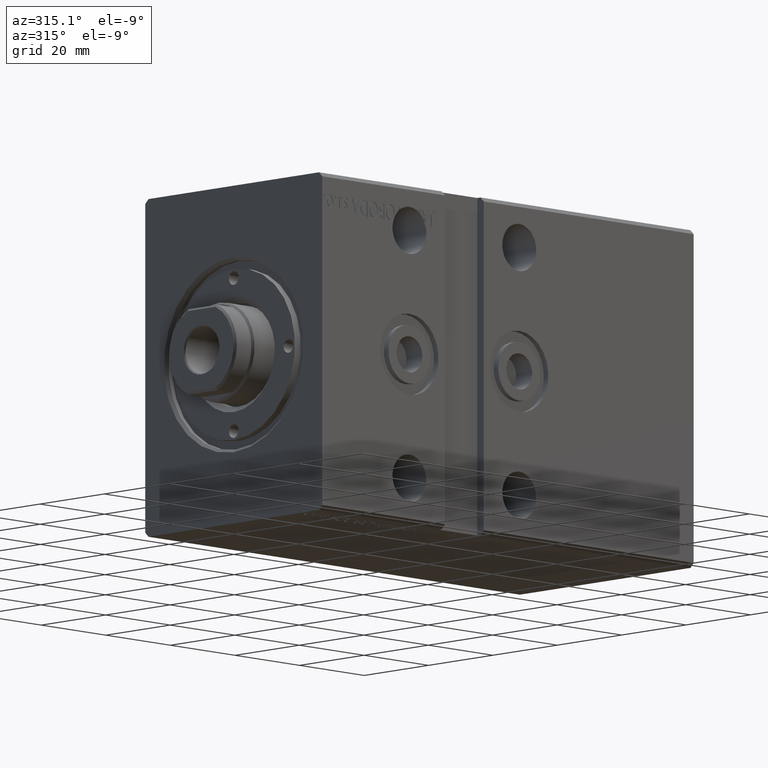
[diagram: clean part render]
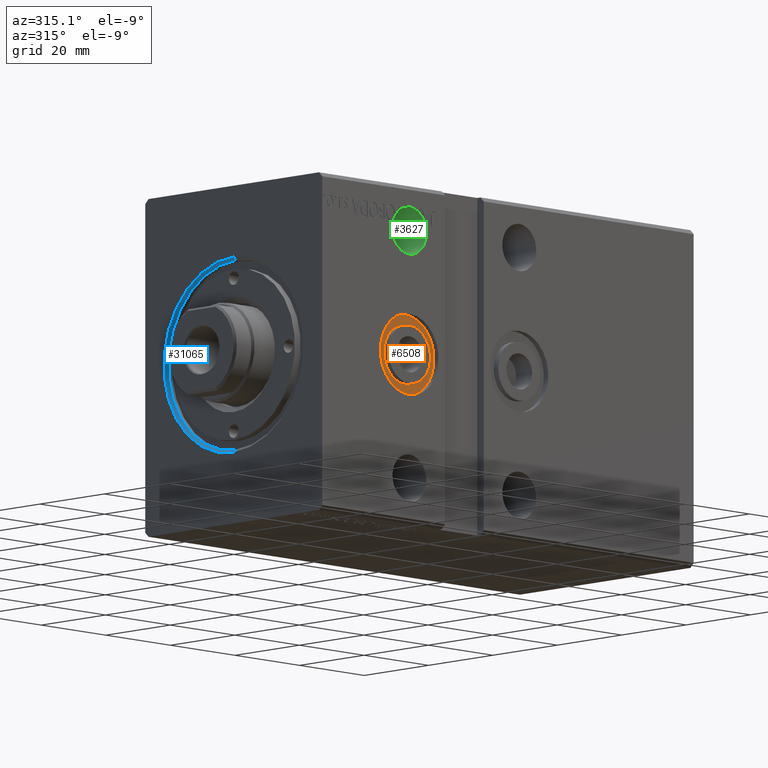
[diagram: same view with three faces highlighted in distinct colors, each labeled with its STEP entity id]
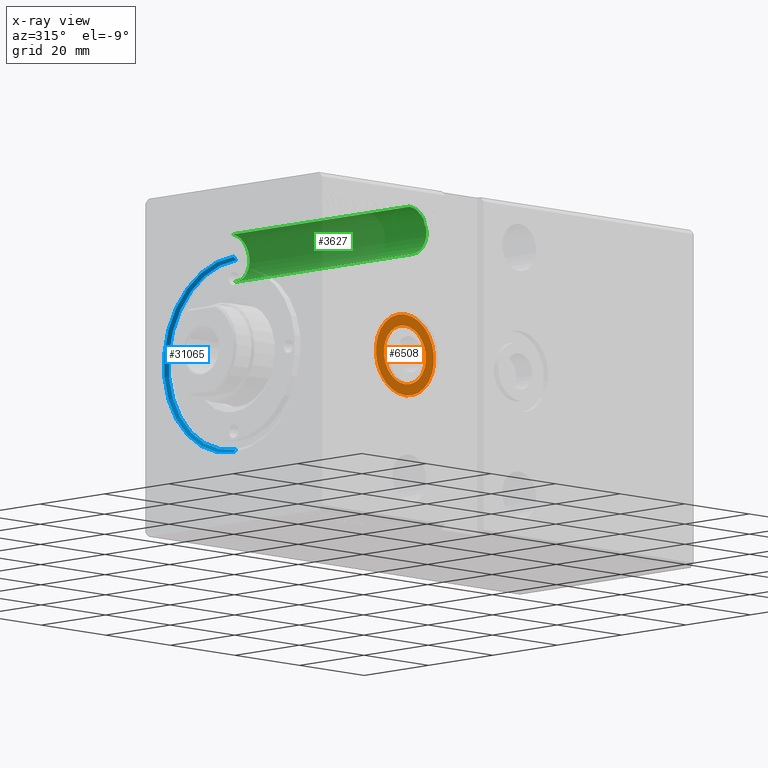
[diagram: x-ray of the same camera — body ghosted, the three highlighted faces saturated]
A machine part, auxiliary view with three faces highlighted in distinct colors.
The next image is the same camera in x-ray (body ghosted, the three faces saturated) — at least one of them is partly hidden behind the body in this view.
Their STEP definitions:

[orange] entity #6508 — the highlighted planar face has unit normal (0, -1, -0).
#57 = CARTESIAN_POINT ( 'NONE',  ( 27.00000000000000355, -26.10000000000000497, 8.999999999999994671 ) ) ;
#1055 = CIRCLE ( 'NONE', #7817, 9.000000000000003553 ) ;
#1378 = DIRECTION ( 'NONE',  ( 0.000000000000000000, -1.000000000000000000, -5.507058653894625853E-17 ) ) ;
#2122 = AXIS2_PLACEMENT_3D ( 'NONE', #34262, #1378, #40813 ) ;
#3092 = CARTESIAN_POINT ( 'NONE',  ( 27.00000000000000355, -26.10000000000000497, -8.168778523557147819E-15 ) ) ;
#3702 = DIRECTION ( 'NONE',  ( 0.000000000000000000, -1.000000000000000000, -5.507058653894625853E-17 ) ) ;
#5172 = DIRECTION ( 'NONE',  ( 0.000000000000000000, 0.000000000000000000, -1.000000000000000000 ) ) ;
#5180 = CARTESIAN_POINT ( 'NONE',  ( 27.00000000000000355, -26.10000000000000497, -8.168778523557147819E-15 ) ) ;
#6149 = CIRCLE ( 'NONE', #20967, 9.000000000000003553 ) ;
#6508 = ADVANCED_FACE ( 'NONE', ( #30691, #11725 ), #7721, .T. ) ;
#6587 = EDGE_CURVE ( 'NONE', #6714, #29184, #6149, .T. ) ;
#6714 = VERTEX_POINT ( 'NONE', #36343 ) ;
#7122 = DIRECTION ( 'NONE',  ( 0.000000000000000000, -1.000000000000000000, -5.507058653894625853E-17 ) ) ;
#7721 = PLANE ( 'NONE',  #2122 ) ;
#7817 = AXIS2_PLACEMENT_3D ( 'NONE', #34049, #28358, #5172 ) ;
#10345 = EDGE_CURVE ( 'NONE', #15339, #15394, #22472, .T. ) ;
#10491 = DIRECTION ( 'NONE',  ( 0.000000000000000000, 0.000000000000000000, -1.000000000000000000 ) ) ;
#11725 = FACE_OUTER_BOUND ( 'NONE', #14425, .T. ) ;
#12996 = DIRECTION ( 'NONE',  ( 0.000000000000000000, 0.000000000000000000, -1.000000000000000000 ) ) ;
#14425 = EDGE_LOOP ( 'NONE', ( #32839, #29053 ) ) ;
#15339 = VERTEX_POINT ( 'NONE', #22551 ) ;
#15394 = VERTEX_POINT ( 'NONE', #38168 ) ;
#16822 = EDGE_CURVE ( 'NONE', #29184, #6714, #1055, .T. ) ;
#17623 = DIRECTION ( 'NONE',  ( 0.000000000000000000, 0.000000000000000000, -1.000000000000000000 ) ) ;
#20792 = DIRECTION ( 'NONE',  ( 0.000000000000000000, -1.000000000000000000, -5.507058653894625853E-17 ) ) ;
#20967 = AXIS2_PLACEMENT_3D ( 'NONE', #5180, #20792, #17623 ) ;
#22472 = CIRCLE ( 'NONE', #37955, 6.500000000000007994 ) ;
#22551 = CARTESIAN_POINT ( 'NONE',  ( 27.00000000000000355, -26.10000000000000497, -6.500000000000015987 ) ) ;
#23471 = ORIENTED_EDGE ( 'NONE', *, *, #10345, .F. ) ;
#24781 = EDGE_LOOP ( 'NONE', ( #23471, #24847 ) ) ;
#24847 = ORIENTED_EDGE ( 'NONE', *, *, #41110, .F. ) ;
#28358 = DIRECTION ( 'NONE',  ( 0.000000000000000000, -1.000000000000000000, -5.507058653894625853E-17 ) ) ;
#29053 = ORIENTED_EDGE ( 'NONE', *, *, #16822, .T. ) ;
#29184 = VERTEX_POINT ( 'NONE', #57 ) ;
#30691 = FACE_BOUND ( 'NONE', #24781, .T. ) ;
#31202 = CIRCLE ( 'NONE', #35232, 6.500000000000007994 ) ;
#32839 = ORIENTED_EDGE ( 'NONE', *, *, #6587, .T. ) ;
#34049 = CARTESIAN_POINT ( 'NONE',  ( 27.00000000000000355, -26.10000000000000497, -8.168778523557147819E-15 ) ) ;
#34262 = CARTESIAN_POINT ( 'NONE',  ( 27.00000000000000355, -26.10000000000000497, -8.168778523557147819E-15 ) ) ;
#35232 = AXIS2_PLACEMENT_3D ( 'NONE', #36632, #7122, #10491 ) ;
#36343 = CARTESIAN_POINT ( 'NONE',  ( 27.00000000000000355, -26.10000000000000497, -9.000000000000010658 ) ) ;
#36632 = CARTESIAN_POINT ( 'NONE',  ( 27.00000000000000355, -26.10000000000000497, -8.168778523557147819E-15 ) ) ;
#37955 = AXIS2_PLACEMENT_3D ( 'NONE', #3092, #3702, #12996 ) ;
#38168 = CARTESIAN_POINT ( 'NONE',  ( 27.00000000000000355, -26.10000000000000497, 6.500000000000000888 ) ) ;
#40813 = DIRECTION ( 'NONE',  ( 0.000000000000000000, 5.507058653894625853E-17, -1.000000000000000000 ) ) ;
#41110 = EDGE_CURVE ( 'NONE', #15394, #15339, #31202, .T. ) ;

[blue] entity #31065 — the highlighted conical surface has half-angle 45 deg.
#791 = VERTEX_POINT ( 'NONE', #21009 ) ;
#1310 = AXIS2_PLACEMENT_3D ( 'NONE', #34310, #7980, #18286 ) ;
#1771 = ORIENTED_EDGE ( 'NONE', *, *, #40197, .F. ) ;
#2282 = LINE ( 'NONE', #5238, #2782 ) ;
#2782 = VECTOR ( 'NONE', #15143, 1000.000000000000000 ) ;
#3818 = LINE ( 'NONE', #36081, #21076 ) ;
#5113 = ORIENTED_EDGE ( 'NONE', *, *, #7224, .T. ) ;
#5190 = CIRCLE ( 'NONE', #24745, 21.00000000000000000 ) ;
#5238 = CARTESIAN_POINT ( 'NONE',  ( 0.7000000000000443645, 0.000000000000000000, 21.00000000000000000 ) ) ;
#7224 = EDGE_CURVE ( 'NONE', #13981, #791, #2282, .T. ) ;
#7980 = DIRECTION ( 'NONE',  ( -1.000000000000000000, 0.000000000000000000, 0.000000000000000000 ) ) ;
#11827 = DIRECTION ( 'NONE',  ( 0.000000000000000000, 0.000000000000000000, -1.000000000000000000 ) ) ;
#13236 = VERTEX_POINT ( 'NONE', #41057 ) ;
#13981 = VERTEX_POINT ( 'NONE', #22638 ) ;
#14148 = DIRECTION ( 'NONE',  ( -0.7071067811865511255, 8.659560562354889717E-17, -0.7071067811865440200 ) ) ;
#14247 = EDGE_LOOP ( 'NONE', ( #32970, #36711, #5113, #1771 ) ) ;
#14698 = CARTESIAN_POINT ( 'NONE',  ( 0.7000000000000443645, 2.571758278209441661E-15, -21.00000000000000000 ) ) ;
#15143 = DIRECTION ( 'NONE',  ( -0.7071067811865511255, 0.000000000000000000, 0.7071067811865440200 ) ) ;
#18141 = CARTESIAN_POINT ( 'NONE',  ( 0.000000000000000000, 0.000000000000000000, 0.000000000000000000 ) ) ;
#18286 = DIRECTION ( 'NONE',  ( 0.000000000000000000, 0.000000000000000000, 1.000000000000000000 ) ) ;
#19492 = CONICAL_SURFACE ( 'NONE', #1310, 21.00000000000000000, 0.7853981633974432830 ) ;
#21009 = CARTESIAN_POINT ( 'NONE',  ( 0.000000000000000000, 0.000000000000000000, 21.70000000000003837 ) ) ;
#21076 = VECTOR ( 'NONE', #14148, 1000.000000000000000 ) ;
#21771 = AXIS2_PLACEMENT_3D ( 'NONE', #18141, #40712, #11827 ) ;
#22638 = CARTESIAN_POINT ( 'NONE',  ( 0.7000000000000443645, 0.000000000000000000, 21.00000000000000000 ) ) ;
#24257 = EDGE_CURVE ( 'NONE', #13981, #25869, #5190, .T. ) ;
#24745 = AXIS2_PLACEMENT_3D ( 'NONE', #40203, #28167, #37245 ) ;
#25869 = VERTEX_POINT ( 'NONE', #14698 ) ;
#28167 = DIRECTION ( 'NONE',  ( -1.000000000000000000, 0.000000000000000000, 0.000000000000000000 ) ) ;
#30317 = FACE_OUTER_BOUND ( 'NONE', #14247, .T. ) ;
#31065 = ADVANCED_FACE ( 'NONE', ( #30317 ), #19492, .F. ) ;
#32970 = ORIENTED_EDGE ( 'NONE', *, *, #40037, .F. ) ;
#34310 = CARTESIAN_POINT ( 'NONE',  ( 0.7000000000000443645, 0.000000000000000000, 0.000000000000000000 ) ) ;
#36081 = CARTESIAN_POINT ( 'NONE',  ( 0.7000000000000443645, 2.571758278209441661E-15, -21.00000000000000000 ) ) ;
#36711 = ORIENTED_EDGE ( 'NONE', *, *, #24257, .F. ) ;
#37245 = DIRECTION ( 'NONE',  ( 0.000000000000000000, 0.000000000000000000, -1.000000000000000000 ) ) ;
#38589 = CIRCLE ( 'NONE', #21771, 21.70000000000003837 ) ;
#40037 = EDGE_CURVE ( 'NONE', #25869, #13236, #3818, .T. ) ;
#40197 = EDGE_CURVE ( 'NONE', #13236, #791, #38589, .T. ) ;
#40203 = CARTESIAN_POINT ( 'NONE',  ( 0.7000000000000443645, 0.000000000000000000, 0.000000000000000000 ) ) ;
#40712 = DIRECTION ( 'NONE',  ( 1.000000000000000000, 0.000000000000000000, 0.000000000000000000 ) ) ;
#41057 = CARTESIAN_POINT ( 'NONE',  ( 0.000000000000000000, 2.657483554149761471E-15, -21.70000000000003837 ) ) ;

[green] entity #3627 — the highlighted cylindrical surface (edge-blend (fillet) strip) has radius 5.25 mm, axis along (-0, -1, -0).
#463 = LINE ( 'NONE', #13960, #15337 ) ;
#1044 = EDGE_CURVE ( 'NONE', #17507, #8496, #2626, .T. ) ;
#1125 = CARTESIAN_POINT ( 'NONE',  ( 26.99999999999999645, -27.50000000000000355, 27.49999999999999289 ) ) ;
#1218 = CARTESIAN_POINT ( 'NONE',  ( 30.28846153846154010, -27.50000000000000355, 31.59249565791571968 ) ) ;
#1251 = VERTEX_POINT ( 'NONE', #24020 ) ;
#1326 = FACE_OUTER_BOUND ( 'NONE', #38065, .T. ) ;
#1573 = ORIENTED_EDGE ( 'NONE', *, *, #39633, .F. ) ;
#2352 = CARTESIAN_POINT ( 'NONE',  ( 30.28846153846154010, -27.30000000000001137, 31.59249565791572678 ) ) ;
#2626 = CIRCLE ( 'NONE', #12712, 5.249999999999994671 ) ;
#2813 = DIRECTION ( 'NONE',  ( -0.000000000000000000, -1.000000000000000000, -5.507058653894626469E-17 ) ) ;
#2841 = CARTESIAN_POINT ( 'NONE',  ( 26.99999999999999645, -27.30000000000001137, 27.49999999999999289 ) ) ;
#3319 = LINE ( 'NONE', #26526, #36468 ) ;
#3410 = VERTEX_POINT ( 'NONE', #5379 ) ;
#3533 = CARTESIAN_POINT ( 'NONE',  ( 26.99999999999999645, 27.50000000000003197, 32.74999999999999289 ) ) ;
#3627 = ADVANCED_FACE ( 'NONE', ( #1326 ), #40141, .F. ) ;
#4156 = CARTESIAN_POINT ( 'NONE',  ( 31.64571472946489550, -27.50000000000000355, 29.94537004406956981 ) ) ;
#5018 = ORIENTED_EDGE ( 'NONE', *, *, #16660, .T. ) ;
#5072 = ORIENTED_EDGE ( 'NONE', *, *, #26682, .F. ) ;
#5379 = CARTESIAN_POINT ( 'NONE',  ( 26.99999999999999645, 27.50000000000003197, 22.25000000000000000 ) ) ;
#5973 = CARTESIAN_POINT ( 'NONE',  ( 30.01923076923077005, 27.50000000000003197, 31.79496746927495110 ) ) ;
#7057 = DIRECTION ( 'NONE',  ( -0.000000000000000000, 1.000000000000000000, 4.752667057470705491E-17 ) ) ;
#7504 = DIRECTION ( 'NONE',  ( 0.000000000000000000, 1.000000000000000000, 0.000000000000000000 ) ) ;
#8420 = EDGE_CURVE ( 'NONE', #3410, #32519, #9863, .T. ) ;
#8461 = CIRCLE ( 'NONE', #21912, 5.249999999999994671 ) ;
#8496 = VERTEX_POINT ( 'NONE', #4156 ) ;
#8977 = CIRCLE ( 'NONE', #32509, 5.249999999999997335 ) ;
#9863 = LINE ( 'NONE', #22729, #40608 ) ;
#10409 = DIRECTION ( 'NONE',  ( -0.000000000000000000, -1.000000000000000000, -5.507058653894626469E-17 ) ) ;
#10714 = ORIENTED_EDGE ( 'NONE', *, *, #8420, .T. ) ;
#11154 = AXIS2_PLACEMENT_3D ( 'NONE', #11266, #7057, #20335 ) ;
#11266 = CARTESIAN_POINT ( 'NONE',  ( 26.99999999999999645, -27.50000000000000355, 27.49999999999999289 ) ) ;
#11463 = DIRECTION ( 'NONE',  ( -0.000000000000000000, -1.000000000000000000, -5.507058653894626469E-17 ) ) ;
#11544 = DIRECTION ( 'NONE',  ( 0.000000000000000000, 0.000000000000000000, -1.000000000000000000 ) ) ;
#11829 = CARTESIAN_POINT ( 'NONE',  ( 26.99999999999999645, -27.50000000000000355, 27.49999999999999289 ) ) ;
#12449 = DIRECTION ( 'NONE',  ( -0.000000000000000000, 1.000000000000000000, 4.752667057470705491E-17 ) ) ;
#12712 = AXIS2_PLACEMENT_3D ( 'NONE', #1125, #21332, #24906 ) ;
#13960 = CARTESIAN_POINT ( 'NONE',  ( 26.99999999999999645, 27.50000000000003197, 32.74999999999999289 ) ) ;
#14351 = AXIS2_PLACEMENT_3D ( 'NONE', #2841, #31921, #28767 ) ;
#14450 = EDGE_CURVE ( 'NONE', #36341, #40706, #37382, .T. ) ;
#14585 = CARTESIAN_POINT ( 'NONE',  ( 30.01923076923077005, -27.50000000000000355, 31.79496746927495110 ) ) ;
#14977 = CARTESIAN_POINT ( 'NONE',  ( 30.28846153846154010, 27.50000000000003197, 31.59249565791572678 ) ) ;
#15337 = VECTOR ( 'NONE', #39896, 1000.000000000000000 ) ;
#16660 = EDGE_CURVE ( 'NONE', #17507, #40706, #40075, .T. ) ;
#16982 = DIRECTION ( 'NONE',  ( 0.000000000000000000, 0.000000000000000000, 1.000000000000000000 ) ) ;
#17108 = EDGE_CURVE ( 'NONE', #22190, #8496, #32951, .T. ) ;
#17507 = VERTEX_POINT ( 'NONE', #1218 ) ;
#17899 = VECTOR ( 'NONE', #2813, 1000.000000000000000 ) ;
#18839 = DIRECTION ( 'NONE',  ( 0.000000000000000000, -1.000000000000000000, -5.507058653894625853E-17 ) ) ;
#19187 = AXIS2_PLACEMENT_3D ( 'NONE', #30260, #7504, #16982 ) ;
#20335 = DIRECTION ( 'NONE',  ( 0.000000000000000000, 0.000000000000000000, 1.000000000000000000 ) ) ;
#20771 = ORIENTED_EDGE ( 'NONE', *, *, #25163, .F. ) ;
#21052 = CARTESIAN_POINT ( 'NONE',  ( 26.99999999999999645, -27.50000000000000355, 32.74999999999998579 ) ) ;
#21118 = CARTESIAN_POINT ( 'NONE',  ( 32.01284735985530716, -27.50000000000000355, 29.06008376274850846 ) ) ;
#21283 = CIRCLE ( 'NONE', #11154, 5.249999999999994671 ) ;
#21332 = DIRECTION ( 'NONE',  ( -0.000000000000000000, 1.000000000000000000, 4.752667057470705491E-17 ) ) ;
#21826 = EDGE_CURVE ( 'NONE', #22605, #34815, #463, .T. ) ;
#21912 = AXIS2_PLACEMENT_3D ( 'NONE', #11829, #12449, #38173 ) ;
#22190 = VERTEX_POINT ( 'NONE', #33717 ) ;
#22605 = VERTEX_POINT ( 'NONE', #3533 ) ;
#22729 = CARTESIAN_POINT ( 'NONE',  ( 26.99999999999999645, 27.50000000000003197, 22.25000000000000000 ) ) ;
#23070 = ORIENTED_EDGE ( 'NONE', *, *, #14450, .F. ) ;
#23580 = AXIS2_PLACEMENT_3D ( 'NONE', #27078, #11463, #37184 ) ;
#24020 = CARTESIAN_POINT ( 'NONE',  ( 32.01284735985530716, -27.30000000000001137, 29.06008376274850846 ) ) ;
#24132 = ORIENTED_EDGE ( 'NONE', *, *, #21826, .F. ) ;
#24680 = DIRECTION ( 'NONE',  ( 0.000000000000000000, 1.000000000000000000, 5.507058653894626469E-17 ) ) ;
#24906 = DIRECTION ( 'NONE',  ( 0.000000000000000000, 0.000000000000000000, 1.000000000000000000 ) ) ;
#25163 = EDGE_CURVE ( 'NONE', #34815, #28175, #21283, .T. ) ;
#25487 = EDGE_CURVE ( 'NONE', #36341, #28175, #34851, .T. ) ;
#25796 = CIRCLE ( 'NONE', #14351, 5.249999999999994671 ) ;
#26526 = CARTESIAN_POINT ( 'NONE',  ( 32.01284735985530716, 27.50000000000003197, 29.06008376274851202 ) ) ;
#26636 = VERTEX_POINT ( 'NONE', #21118 ) ;
#26664 = VECTOR ( 'NONE', #24680, 1000.000000000000000 ) ;
#26682 = EDGE_CURVE ( 'NONE', #26636, #32519, #8461, .T. ) ;
#27078 = CARTESIAN_POINT ( 'NONE',  ( 26.99999999999999645, 27.50000000000003197, 27.49999999999999645 ) ) ;
#28175 = VERTEX_POINT ( 'NONE', #14585 ) ;
#28767 = DIRECTION ( 'NONE',  ( 0.000000000000000000, 0.000000000000000000, 1.000000000000000000 ) ) ;
#28859 = ORIENTED_EDGE ( 'NONE', *, *, #17108, .T. ) ;
#30260 = CARTESIAN_POINT ( 'NONE',  ( 26.99999999999999645, -27.30000000000001137, 27.49999999999999289 ) ) ;
#31921 = DIRECTION ( 'NONE',  ( 0.000000000000000000, 1.000000000000000000, -0.000000000000000000 ) ) ;
#32406 = DIRECTION ( 'NONE',  ( 0.000000000000000000, 1.000000000000000000, 5.507058653894626469E-17 ) ) ;
#32509 = AXIS2_PLACEMENT_3D ( 'NONE', #33661, #18839, #11544 ) ;
#32519 = VERTEX_POINT ( 'NONE', #33236 ) ;
#32951 = LINE ( 'NONE', #39296, #34742 ) ;
#33236 = CARTESIAN_POINT ( 'NONE',  ( 26.99999999999999645, -27.50000000000000355, 22.24999999999999645 ) ) ;
#33661 = CARTESIAN_POINT ( 'NONE',  ( 26.99999999999999645, 27.50000000000003197, 27.49999999999999645 ) ) ;
#33717 = CARTESIAN_POINT ( 'NONE',  ( 31.64571472946489550, -27.30000000000001137, 29.94537004406957692 ) ) ;
#34625 = ORIENTED_EDGE ( 'NONE', *, *, #40303, .F. ) ;
#34742 = VECTOR ( 'NONE', #10409, 1000.000000000000000 ) ;
#34815 = VERTEX_POINT ( 'NONE', #21052 ) ;
#34851 = LINE ( 'NONE', #5973, #17899 ) ;
#35850 = EDGE_CURVE ( 'NONE', #26636, #1251, #3319, .T. ) ;
#36021 = ORIENTED_EDGE ( 'NONE', *, *, #1044, .F. ) ;
#36341 = VERTEX_POINT ( 'NONE', #37209 ) ;
#36468 = VECTOR ( 'NONE', #32406, 1000.000000000000000 ) ;
#37184 = DIRECTION ( 'NONE',  ( 0.000000000000000000, 0.000000000000000000, -1.000000000000000000 ) ) ;
#37209 = CARTESIAN_POINT ( 'NONE',  ( 30.01923076923077005, -27.30000000000001137, 31.79496746927494399 ) ) ;
#37382 = CIRCLE ( 'NONE', #19187, 5.249999999999994671 ) ;
#37886 = ORIENTED_EDGE ( 'NONE', *, *, #25487, .T. ) ;
#38065 = EDGE_LOOP ( 'NONE', ( #24132, #34625, #10714, #5072, #39455, #1573, #28859, #36021, #5018, #23070, #37886, #20771 ) ) ;
#38173 = DIRECTION ( 'NONE',  ( 0.000000000000000000, 0.000000000000000000, 1.000000000000000000 ) ) ;
#39296 = CARTESIAN_POINT ( 'NONE',  ( 31.64571472946489550, 27.50000000000003197, 29.94537004406957337 ) ) ;
#39455 = ORIENTED_EDGE ( 'NONE', *, *, #35850, .T. ) ;
#39633 = EDGE_CURVE ( 'NONE', #22190, #1251, #25796, .T. ) ;
#39896 = DIRECTION ( 'NONE',  ( -0.000000000000000000, -1.000000000000000000, -5.507058653894626469E-17 ) ) ;
#40075 = LINE ( 'NONE', #14977, #26664 ) ;
#40141 = CYLINDRICAL_SURFACE ( 'NONE', #23580, 5.249999999999997335 ) ;
#40303 = EDGE_CURVE ( 'NONE', #3410, #22605, #8977, .T. ) ;
#40608 = VECTOR ( 'NONE', #41509, 1000.000000000000000 ) ;
#40706 = VERTEX_POINT ( 'NONE', #2352 ) ;
#41509 = DIRECTION ( 'NONE',  ( -0.000000000000000000, -1.000000000000000000, -5.507058653894626469E-17 ) ) ;